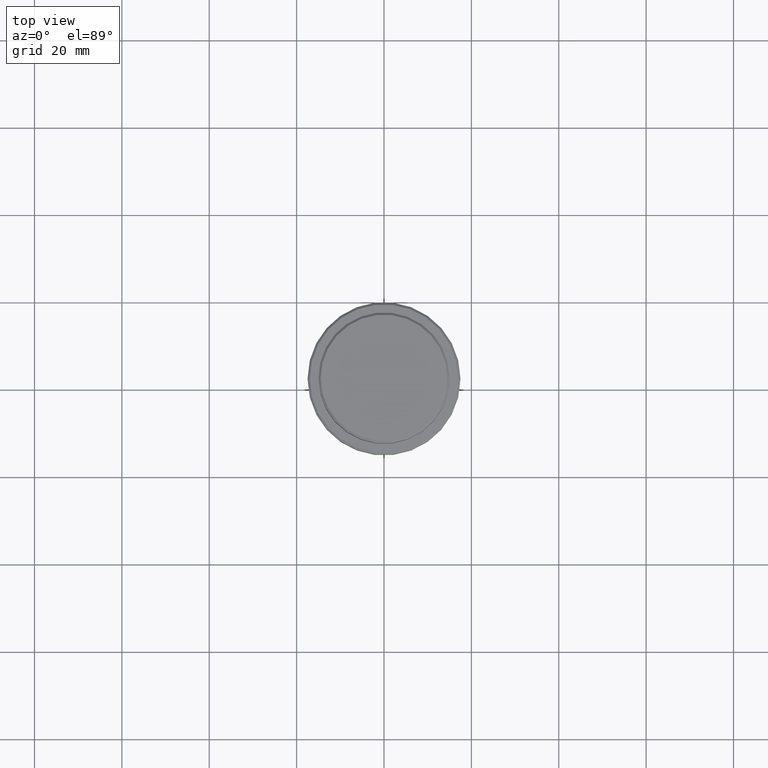
[diagram: clean part render]
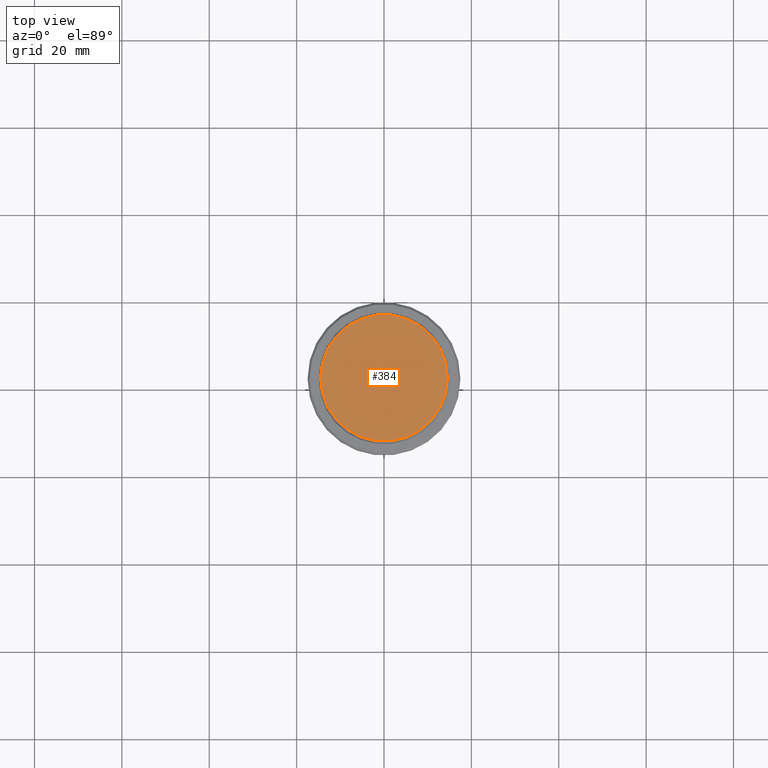
[diagram: same view with one face highlighted and labeled with its STEP entity id]
A machine part, top view. The second image highlights one B-rep face of the part: STEP entity #384.
In plain terms, the highlighted planar face has unit normal (0, -0, 1).
Its self-contained STEP definition (entity closure, byte-faithful):
#347 = FACE_OUTER_BOUND ( 'NONE', #765, .T. ) ;
#384 = ADVANCED_FACE ( 'NONE', ( #347 ), #1211, .T. ) ;
#403 = CIRCLE ( 'NONE', #451, 14.49999999999999645 ) ;
#451 = AXIS2_PLACEMENT_3D ( 'NONE', #859, #641, #1077 ) ;
#454 = DIRECTION ( 'NONE',  ( 0.000000000000000000, -0.000000000000000000, 1.000000000000000000 ) ) ;
#493 = AXIS2_PLACEMENT_3D ( 'NONE', #1114, #454, #1006 ) ;
#527 = DIRECTION ( 'NONE',  ( 1.000000000000000000, 0.000000000000000000, 0.000000000000000000 ) ) ;
#565 = CIRCLE ( 'NONE', #882, 14.49999999999999645 ) ;
#628 = CARTESIAN_POINT ( 'NONE',  ( 0.000000000000000000, 0.000000000000000000, 0.000000000000000000 ) ) ;
#641 = DIRECTION ( 'NONE',  ( -0.000000000000000000, -0.000000000000000000, 1.000000000000000000 ) ) ;
#765 = EDGE_LOOP ( 'NONE', ( #1063, #887 ) ) ;
#824 = CARTESIAN_POINT ( 'NONE',  ( -14.49999999999999645, 0.000000000000000000, 0.000000000000000000 ) ) ;
#859 = CARTESIAN_POINT ( 'NONE',  ( 0.000000000000000000, 0.000000000000000000, 0.000000000000000000 ) ) ;
#882 = AXIS2_PLACEMENT_3D ( 'NONE', #628, #979, #527 ) ;
#887 = ORIENTED_EDGE ( 'NONE', *, *, #1143, .T. ) ;
#915 = CARTESIAN_POINT ( 'NONE',  ( 14.49999999999999645, 1.806354028742345802E-15, 0.000000000000000000 ) ) ;
#979 = DIRECTION ( 'NONE',  ( -0.000000000000000000, -0.000000000000000000, 1.000000000000000000 ) ) ;
#986 = VERTEX_POINT ( 'NONE', #824 ) ;
#1006 = DIRECTION ( 'NONE',  ( 1.000000000000000000, 0.000000000000000000, 0.000000000000000000 ) ) ;
#1055 = EDGE_CURVE ( 'NONE', #986, #1365, #565, .T. ) ;
#1063 = ORIENTED_EDGE ( 'NONE', *, *, #1055, .T. ) ;
#1077 = DIRECTION ( 'NONE',  ( 1.000000000000000000, 0.000000000000000000, 0.000000000000000000 ) ) ;
#1114 = CARTESIAN_POINT ( 'NONE',  ( 0.000000000000000000, 0.000000000000000000, 0.000000000000000000 ) ) ;
#1143 = EDGE_CURVE ( 'NONE', #1365, #986, #403, .T. ) ;
#1211 = PLANE ( 'NONE',  #493 ) ;
#1365 = VERTEX_POINT ( 'NONE', #915 ) ;